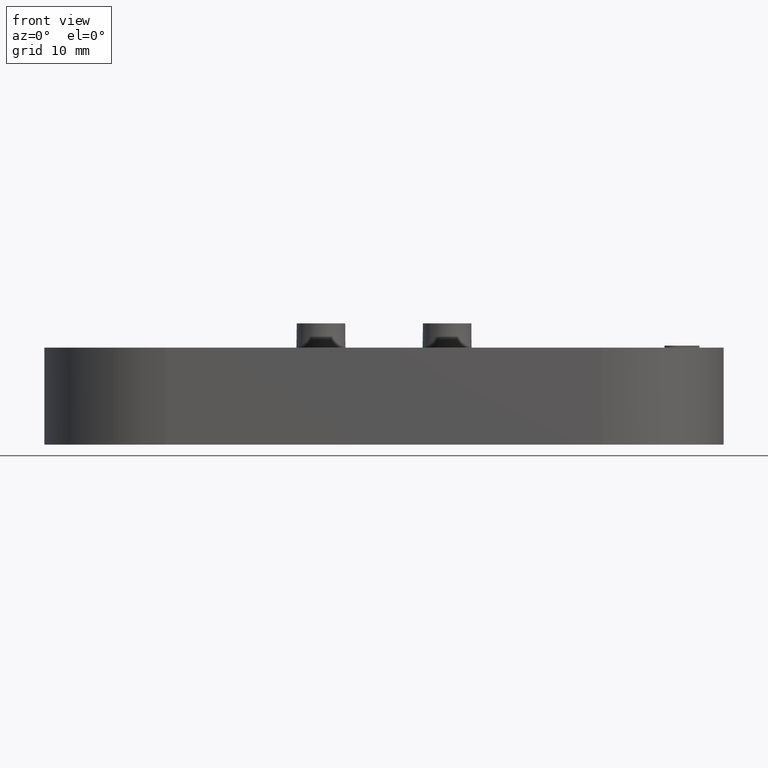
[diagram: clean part render]
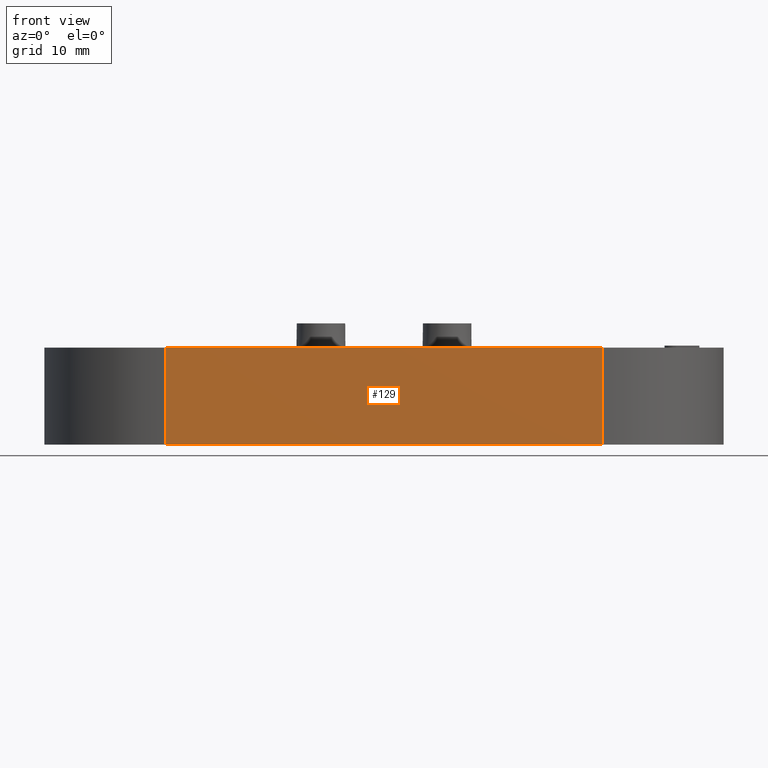
[diagram: same view with one face highlighted and labeled with its STEP entity id]
A machine part, front view. The second image highlights one B-rep face of the part: STEP entity #129.
In plain terms, the highlighted planar face has unit normal (0, 1, -0).
Its self-contained STEP definition (entity closure, byte-faithful):
#129 = ADVANCED_FACE( '', ( #438 ), #439, .F. );
#438 = FACE_OUTER_BOUND( '', #914, .T. );
#439 = PLANE( '', #915 );
#914 = EDGE_LOOP( '', ( #1842, #1843, #1844, #1845 ) );
#915 = AXIS2_PLACEMENT_3D( '', #1846, #1847, #1848 );
#1842 = ORIENTED_EDGE( '', *, *, #2975, .T. );
#1843 = ORIENTED_EDGE( '', *, *, #3332, .F. );
#1844 = ORIENTED_EDGE( '', *, *, #3189, .F. );
#1845 = ORIENTED_EDGE( '', *, *, #3331, .T. );
#1846 = CARTESIAN_POINT( '', ( 21.7500000000000, -12.4974592024271, 3.32325051220197E-016 ) );
#1847 = DIRECTION( '', ( 0.000000000000000, 1.00000000000000, -6.12303176911189E-017 ) );
#1848 = DIRECTION( '', ( 1.00000000000000, 0.000000000000000, 0.000000000000000 ) );
#2975 = EDGE_CURVE( '', #3525, #3523, #3526, .T. );
#3189 = EDGE_CURVE( '', #3913, #3915, #3916, .T. );
#3331 = EDGE_CURVE( '', #3913, #3525, #4178, .T. );
#3332 = EDGE_CURVE( '', #3915, #3523, #4179, .T. );
#3523 = VERTEX_POINT( '', #4429 );
#3525 = VERTEX_POINT( '', #4431 );
#3526 = LINE( '', #4432, #4433 );
#3913 = VERTEX_POINT( '', #4969 );
#3915 = VERTEX_POINT( '', #4971 );
#3916 = LINE( '', #4972, #4973 );
#4178 = LINE( '', #5370, #5371 );
#4179 = LINE( '', #5372, #5373 );
#4429 = CARTESIAN_POINT( '', ( -23.2500000000000, -12.4974592024271, 9.99999999999999 ) );
#4431 = CARTESIAN_POINT( '', ( 21.7500000000000, -12.4974592024271, 9.99999999999999 ) );
#4432 = CARTESIAN_POINT( '', ( 21.7500000000000, -12.4974592024271, 9.99999999999999 ) );
#4433 = VECTOR( '', #5757, 1000.00000000000 );
#4969 = CARTESIAN_POINT( '', ( 21.7500000000000, -12.4974592024271, 3.32325051220197E-016 ) );
#4971 = CARTESIAN_POINT( '', ( -23.2500000000000, -12.4974592024271, 3.32325051220197E-016 ) );
#4972 = CARTESIAN_POINT( '', ( 21.7500000000000, -12.4974592024271, 3.32325051220197E-016 ) );
#4973 = VECTOR( '', #6099, 1000.00000000000 );
#5370 = CARTESIAN_POINT( '', ( 21.7500000000000, -12.4974592024271, 3.32325051220197E-016 ) );
#5371 = VECTOR( '', #6253, 1000.00000000000 );
#5372 = CARTESIAN_POINT( '', ( -23.2500000000000, -12.4974592024271, 3.32325051220197E-016 ) );
#5373 = VECTOR( '', #6254, 1000.00000000000 );
#5757 = DIRECTION( '', ( -1.00000000000000, 0.000000000000000, 0.000000000000000 ) );
#6099 = DIRECTION( '', ( -1.00000000000000, 0.000000000000000, 0.000000000000000 ) );
#6253 = DIRECTION( '', ( 0.000000000000000, 6.12303176911189E-017, 1.00000000000000 ) );
#6254 = DIRECTION( '', ( 0.000000000000000, 6.12303176911189E-017, 1.00000000000000 ) );